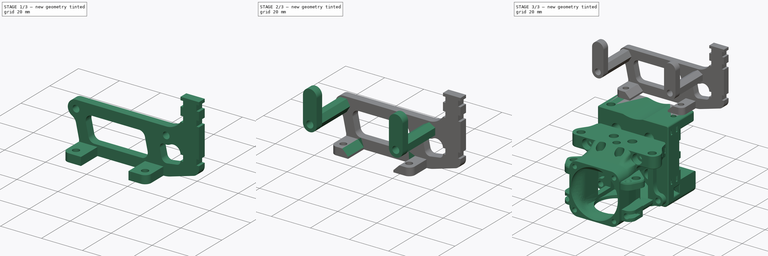
[diagram: build sequence overview — one tinted view per stage of 3, left to right]
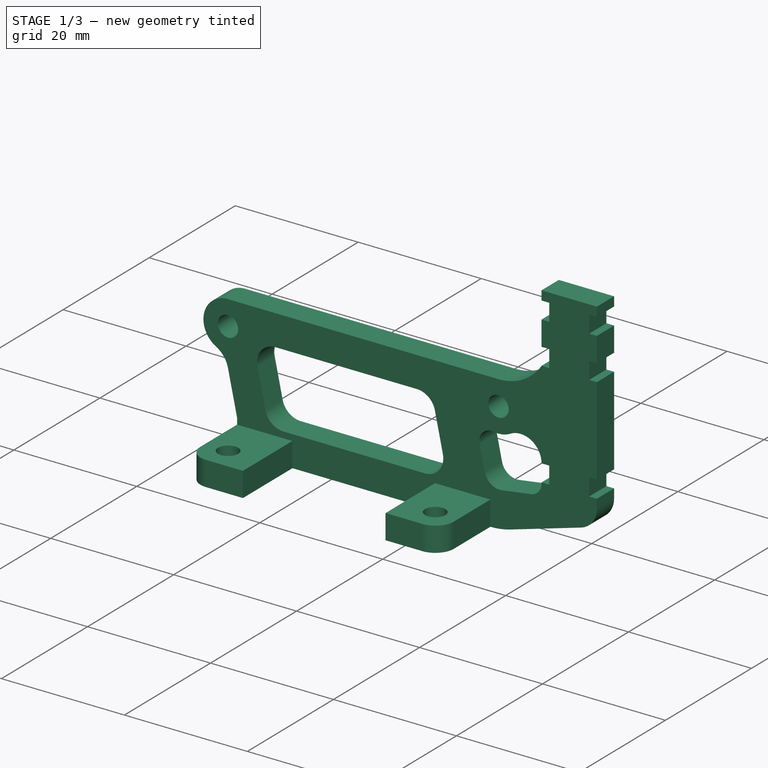
[diagram: stage 1 of 3 — iso view after this stage's code; geometry added in this stage tinted green]
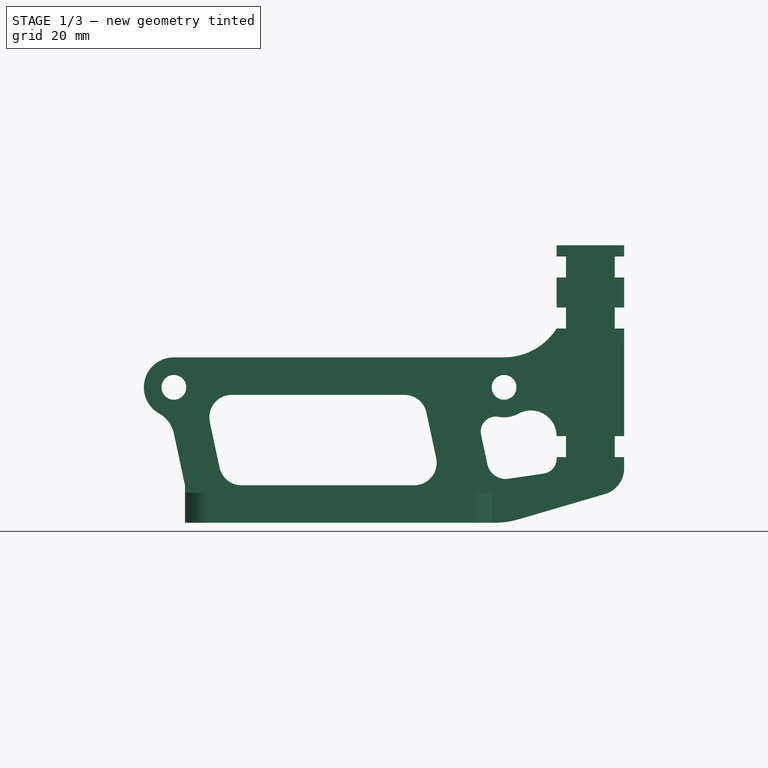
[diagram: stage 1 of 3 — front view after this stage's code; geometry added in this stage tinted green]
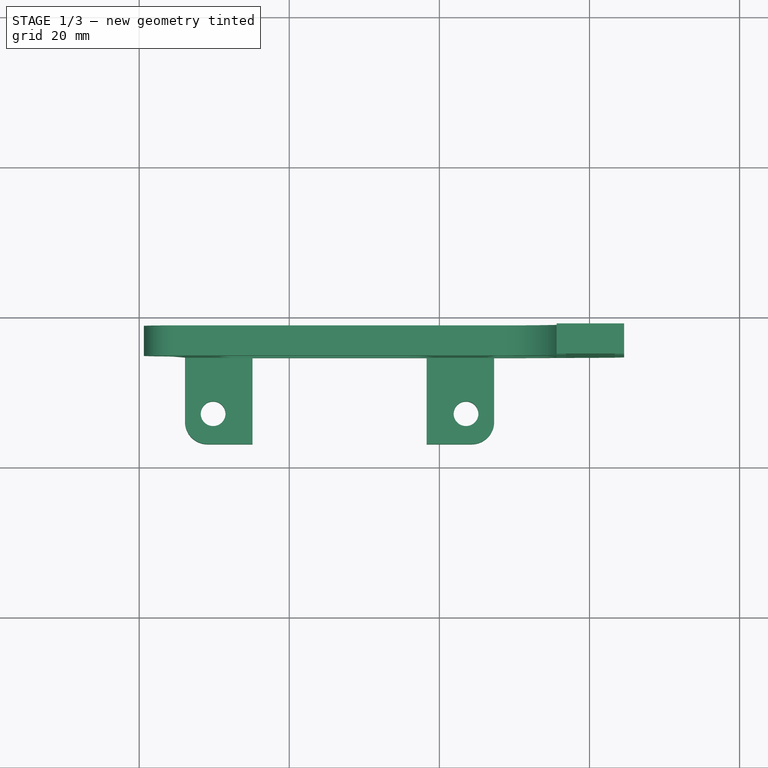
[diagram: stage 1 of 3 — top view after this stage's code; geometry added in this stage tinted green]
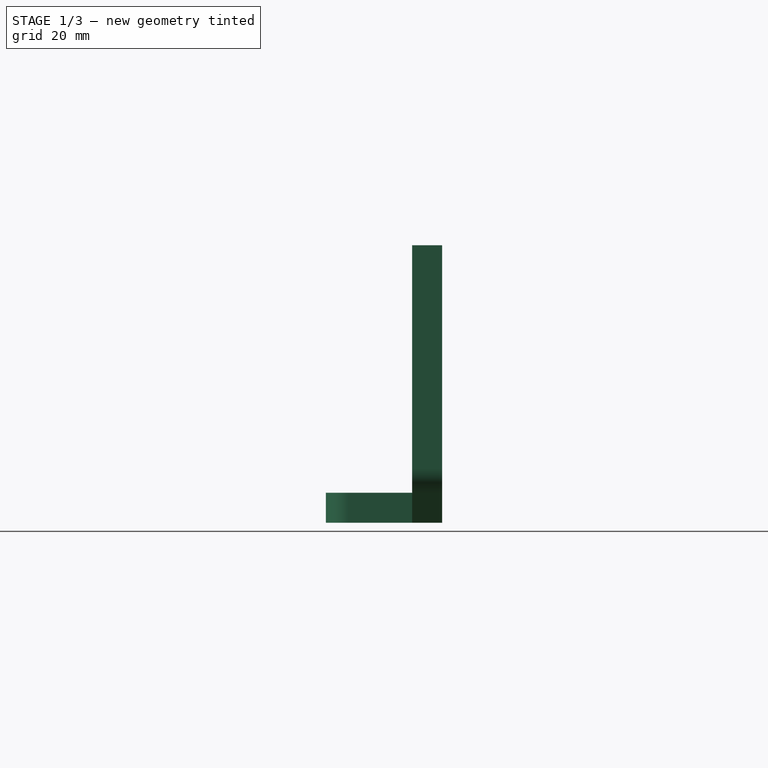
[diagram: stage 1 of 3 — right view after this stage's code; geometry added in this stage tinted green]
FCSTD DOCUMENT  (FreeCAD 2023.811R14555 (Git shallow))
Label: StrainRelief_v3
License: All rights reserved
objects: Part::Feature×18, App::Part×5, Part::SubShapeBinder×4, Sketcher::SketchObject×4, PartDesign::Pad×4, Part::FeaturePython×2, PartDesign::Body×2, App::DocumentObjectGroup×1, Part::Refine×1, PartDesign::Chamfer×1
note: 50 computed .brp shape members not serialized (recipe doc carries the construction recipe); baked Part::Feature solids carry a one-line shape summary decoded from their .brp

FEATURE [PartDesign::Body] Body  label="StuffInBetween"
  AutoGroupSolids = false
  ClaimAllChildren = false
  ExportMode = 0
  Group = -> [Sketch,Import,Import001,Pad,Sketch001,Pad001]
  InvalidShape = false
  Origin = -> Origin016
  Tip = -> Pad001
  TreeRank = 511
  ValidateShape = false
  _ExportChildren = -> [Import,Import001,Pad,Pad001]
  _GroupVersion = 1
FEATURE [Part::SubShapeBinder] Import002  label="Import002(Standoffs)"
  BindCopyOnChange = 0
  BindMode = 0
  ClaimChildren = false
  Context = -> Body001 [Import002.]
  EdgeTolerance = 1e-06
  FillStyle = 0
  Fuse = false
  InvalidShape = false
  MakeFace = false
  MergeEdges = true
  OffsetFill = false
  OffsetIntersection = false
  OffsetJoinType = 0
  OffsetOpenResult = false
  Outline = false
  PartialLoad = false
  Relative = true
  SplitEdges = false
  Support = -> [Body[Pad001.]]
  TightBound = false
  TreeRank = 529
  ValidateShape = false
  _Version = 8
FEATURE [Part::SubShapeBinder] Import003  label="Import003(Carriage.002)"
  BindCopyOnChange = 0
  BindMode = 0
  ClaimChildren = false
  Context = -> Body001 [Import003.]
  EdgeTolerance = 1e-06
  FillStyle = 0
  Fuse = false
  InvalidShape = false
  MakeFace = false
  MergeEdges = true
  OffsetFill = false
  OffsetIntersection = false
  OffsetJoinType = 0
  OffsetOpenResult = false
  Outline = false
  PartialLoad = false
  Relative = true
  SplitEdges = false
  Support = -> [Refined]
  TightBound = false
  TreeRank = 530
  ValidateShape = false
  _Version = 8
FEATURE [Sketcher::SketchObject] Sketch002  label="StrainRelief_Profile_sk"
  ArcFitTolerance = 1e-06
  ExternalBSplineMaxDegree = 5
  ExternalBSplineTolerance = 0.0001
  ExternalGeometry = -> [Import002,Import003]
  FullyConstrained = true
  InternalTolerance = 1e-06
  InvalidShape = false
  MakeInternals = false
  MapMode = 5
  Placement = pos=(0,174.6,0) rot=(0,0.707107,0.707107;3.14159rad)
  TreeRank = 531
  ValidateShape = false
  sketch-geometry (63):
    g0: Circle [constr] CenterX=-148.62 CenterY=149.5 CenterZ=0 NormalX=0 NormalY=0 NormalZ=1 AngleXU=0 Radius=4
    g1: Circle [constr] CenterX=-104.62 CenterY=149.5 CenterZ=0 NormalX=0 NormalY=0 NormalZ=1 AngleXU=0 Radius=4
    g2: LineSegment [constr] StartX=-164.62 StartY=168.44 StartZ=0 EndX=-155.62 EndY=168.44 EndZ=0
    g3: LineSegment [constr] StartX=-155.62 StartY=168.44 StartZ=0 EndX=-155.62 EndY=138.7 EndZ=0
    g4: LineSegment [constr] StartX=-155.62 StartY=138.7 StartZ=0 EndX=-164.62 EndY=138.7 EndZ=0
    g5: LineSegment [constr] StartX=-164.62 StartY=138.7 StartZ=0 EndX=-164.62 EndY=168.44 EndZ=0
    g6: LineSegment [constr] StartX=-163.37 StartY=168.44 StartZ=0 EndX=-155.62 EndY=168.44 EndZ=0
    g7: LineSegment [constr] StartX=-155.62 StartY=138.7 StartZ=0 EndX=-163.37 EndY=138.7 EndZ=0
    g8: LineSegment [constr] StartX=-163.37 StartY=138.7 StartZ=0 EndX=-163.37 EndY=168.44 EndZ=0
    g9: LineSegment StartX=-164.62 StartY=164.14 StartZ=0 EndX=-164.62 EndY=160.14 EndZ=0
    g10: LineSegment StartX=-164.62 StartY=160.14 StartZ=0 EndX=-163.37 EndY=160.14 EndZ=0
    g11: LineSegment StartX=-163.37 StartY=160.14 StartZ=0 EndX=-163.37 EndY=157.34 EndZ=0
    g12: LineSegment StartX=-163.37 StartY=157.34 StartZ=0 EndX=-164.62 EndY=157.34 EndZ=0
    g13: LineSegment StartX=-164.62 StartY=157.34 StartZ=0 EndX=-164.62 EndY=143 EndZ=0
    g14: LineSegment StartX=-164.62 StartY=143 StartZ=0 EndX=-163.37 EndY=143 EndZ=0
    g15: LineSegment StartX=-163.37 StartY=143 StartZ=0 EndX=-163.37 EndY=140.2 EndZ=0
    g16: LineSegment StartX=-163.37 StartY=140.2 StartZ=0 EndX=-164.62 EndY=140.2 EndZ=0
    g17: LineSegment StartX=-164.62 StartY=164.14 StartZ=0 EndX=-163.37 EndY=164.14 EndZ=0
    g18: LineSegment StartX=-163.37 StartY=164.14 StartZ=0 EndX=-163.37 EndY=166.94 EndZ=0
    g19: LineSegment StartX=-163.37 StartY=166.94 StartZ=0 EndX=-164.62 EndY=166.94 EndZ=0
    g20: LineSegment StartX=-164.62 StartY=166.94 StartZ=0 EndX=-164.62 EndY=168.44 EndZ=0
    g21: LineSegment StartX=-164.62 StartY=168.44 StartZ=0 EndX=-155.62 EndY=168.44 EndZ=0
    g22: LineSegment StartX=-155.62 StartY=168.44 StartZ=0 EndX=-155.62 EndY=166.94 EndZ=0
    g23: LineSegment StartX=-155.62 StartY=166.94 StartZ=0 EndX=-156.87 EndY=166.94 EndZ=0
    g24: LineSegment StartX=-156.87 StartY=166.94 StartZ=0 EndX=-156.87 EndY=164.14 EndZ=0
    g25: LineSegment StartX=-156.87 StartY=164.14 StartZ=0 EndX=-155.62 EndY=164.14 EndZ=0
    g26: LineSegment StartX=-155.62 StartY=164.14 StartZ=0 EndX=-155.62 EndY=160.14 EndZ=0
    g27: LineSegment StartX=-155.62 StartY=160.14 StartZ=0 EndX=-156.87 EndY=160.14 EndZ=0
    g28: LineSegment StartX=-156.87 StartY=160.14 StartZ=0 EndX=-156.87 EndY=157.34 EndZ=0
    g29: LineSegment StartX=-156.87 StartY=157.34 StartZ=0 EndX=-155.62 EndY=157.34 EndZ=0
    g30: LineSegment StartX=-155.62 StartY=143 StartZ=0 EndX=-156.87 EndY=143 EndZ=0
    g31: LineSegment StartX=-156.87 StartY=143 StartZ=0 EndX=-156.87 EndY=140.2 EndZ=0
    g32: LineSegment StartX=-156.87 StartY=140.2 StartZ=0 EndX=-155.62 EndY=140.2 EndZ=0
    g33: ArcOfCircle CenterX=-148.62 CenterY=161.8 CenterZ=0 NormalX=0 NormalY=0 NormalZ=1 AngleXU=0 Radius=8.3 StartAngle=3.70886 EndAngle=4.71239
    g34: LineSegment StartX=-164.62 StartY=140.2 StartZ=0 EndX=-164.62 EndY=138.7 EndZ=0
    g35: LineSegment StartX=-162.057 StartY=135.28 StartZ=0 EndX=-150.572 EndY=131.919 EndZ=0
    g36: ArcOfCircle CenterX=-161.057 CenterY=138.7 CenterZ=0 NormalX=0 NormalY=0 NormalZ=1 AngleXU=0 Radius=3.56339 StartAngle=3.14159 EndAngle=4.4277
    g37: ArcOfCircle CenterX=-152.2 CenterY=143 CenterZ=0 NormalX=0 NormalY=0 NormalZ=1 AngleXU=0 Radius=3.42045 StartAngle=1.06742 EndAngle=3.14159
    g38: LineSegment StartX=-148.62 StartY=153.5 StartZ=0 EndX=-104.62 EndY=153.5 EndZ=0
    g39: ArcOfCircle CenterX=-147.299 CenterY=143.101 CenterZ=0 NormalX=0 NormalY=0 NormalZ=1 AngleXU=0 Radius=11.6514 StartAngle=4.4277 EndAngle=4.71239
    g40: LineSegment StartX=-147.299 StartY=131.45 StartZ=0 EndX=-106.099 EndY=131.45 EndZ=0
    g41: GeomPoint [constr] X=-126.62 Y=149.5 Z=0
    g42: ArcOfCircle CenterX=-104.62 CenterY=149.5 CenterZ=0 NormalX=0 NormalY=0 NormalZ=1 AngleXU=0 Radius=4 StartAngle=5.22324 EndAngle=7.85398
    g43: ArcOfCircle CenterX=-100.709 CenterY=142.521 CenterZ=0 NormalX=0 NormalY=0 NormalZ=1 AngleXU=0 Radius=4 StartAngle=2.08164 EndAngle=2.93064
    g44: LineSegment StartX=-106.099 StartY=131.45 StartZ=0 EndX=-106.099 EndY=136.45 EndZ=0
    g45: LineSegment StartX=-106.099 StartY=136.45 StartZ=0 EndX=-104.62 EndY=143.359 EndZ=0
    g46: LineSegment StartX=-135.343 StartY=148.5 StartZ=0 EndX=-112.343 EndY=148.5 EndZ=0
    g47: LineSegment StartX=-113.638 StartY=136.45 StartZ=0 EndX=-136.638 EndY=136.45 EndZ=0
    g48: LineSegment StartX=-139.572 StartY=140.078 StartZ=0 EndX=-138.276 EndY=146.128 EndZ=0
    g49: LineSegment StartX=-110.705 StartY=138.822 StartZ=0 EndX=-109.409 EndY=144.872 EndZ=0
    g50: LineSegment StartX=-155.62 StartY=140.2 StartZ=0 EndX=-155.62 EndY=139.989 EndZ=0
    g51: LineSegment StartX=-153.91 StartY=138.011 StartZ=0 EndX=-149.191 EndY=137.318 EndZ=0
    g52: LineSegment StartX=-146.394 StartY=139.261 StartZ=0 EndX=-145.554 EndY=143.185 EndZ=0
    g53: ArcOfCircle CenterX=-135.343 CenterY=145.5 CenterZ=0 NormalX=0 NormalY=0 NormalZ=1 AngleXU=0 Radius=3 StartAngle=1.5708 EndAngle=2.93064
    g54: ArcOfCircle CenterX=-147.51 CenterY=143.604 CenterZ=0 NormalX=0 NormalY=0 NormalZ=1 AngleXU=0 Radius=2 StartAngle=6.07223 EndAngle=8.04011
    g55: ArcOfCircle CenterX=-148.83 CenterY=139.782 CenterZ=0 NormalX=0 NormalY=0 NormalZ=1 AngleXU=0 Radius=2.49043 StartAngle=4.5667 EndAngle=6.07223
    g56: ArcOfCircle CenterX=-136.638 CenterY=139.45 CenterZ=0 NormalX=0 NormalY=0 NormalZ=1 AngleXU=0 Radius=3 StartAngle=2.93064 EndAngle=4.71239
    g57: ArcOfCircle CenterX=-112.343 CenterY=145.5 CenterZ=0 NormalX=0 NormalY=0 NormalZ=1 AngleXU=0 Radius=3 StartAngle=6.07223 EndAngle=7.85398
    g58: ArcOfCircle CenterX=-113.638 CenterY=139.45 CenterZ=0 NormalX=0 NormalY=0 NormalZ=1 AngleXU=0 Radius=3 StartAngle=4.71239 EndAngle=6.07223
    g59: ArcOfCircle CenterX=-153.62 CenterY=139.989 CenterZ=0 NormalX=0 NormalY=0 NormalZ=1 AngleXU=0 Radius=2 StartAngle=3.14159 EndAngle=4.5667
    g60: ArcOfCircle CenterX=-148.62 CenterY=149.5 CenterZ=0 NormalX=0 NormalY=0 NormalZ=1 AngleXU=0 Radius=4 StartAngle=4.20901 EndAngle=4.89852
    g61: Circle CenterX=-148.62 CenterY=149.5 CenterZ=0 NormalX=0 NormalY=0 NormalZ=1 AngleXU=0 Radius=1.65
    g62: Circle CenterX=-104.62 CenterY=149.5 CenterZ=0 NormalX=0 NormalY=0 NormalZ=1 AngleXU=0 Radius=1.65
  constraints (163):
    c: Coincident(g0,g-3)
    c: Coincident(g1,g-4)
    c: Equal(g1,g0)
    c: Coincident(g2,g3)
    c: Coincident(g3,g4)
    c: Coincident(g5,g2)
    c: Horizontal(g2)
    c: Horizontal(g4)
    c: Vertical(g3)
    c: Vertical(g5)
    c: Coincident(g8,g6)
    c: Horizontal(g6)
    c: Horizontal(g7)
    c: Vertical(g8)
    c: PointOnObject(g9,g5)
    c: PointOnObject(g9,g5)
    c: Coincident(g9,g10)
    c: PointOnObject(g10,g8)
    c: Horizontal(g10)
    c: Coincident(g10,g11)
    c: PointOnObject(g11,g8)
    c: Coincident(g11,g12)
    c: PointOnObject(g12,g5)
    c: Horizontal(g12)
    c: Coincident(g12,g13)
    c: PointOnObject(g13,g5)
    c: Coincident(g13,g14)
    c: PointOnObject(g14,g8)
    c: Horizontal(g14)
    c: Coincident(g14,g15)
    c: PointOnObject(g15,g8)
    c: Coincident(g15,g16)
    c: PointOnObject(g16,g5)
    c: Horizontal(g16)
    c: Coincident(g9,g17)
    c: PointOnObject(g17,g8)
    c: Coincident(g17,g18)
    c: PointOnObject(g18,g8)
    c: Coincident(g18,g19)
    c: PointOnObject(g19,g5)
    c: Horizontal(g19)
    c: Coincident(g19,g20)
    c: Coincident(g20,g2)
    c: Coincident(g20,g21)
    c: Coincident(g21,g2)
    c: Horizontal(g17)
    c: Equal(g18,g11)
    c: Equal(g11,g15)
    c: DistanceY(g18,g18) = 2.8
    c: Coincident(g21,g22)
    c: PointOnObject(g22,g3)
    c: Coincident(g22,g23)
    c: Horizontal(g23)
    c: Coincident(g23,g24)
    c: Coincident(g24,g25)
    c: PointOnObject(g25,g3)
    c: Horizontal(g25)
    c: Coincident(g25,g26)
    c: PointOnObject(g26,g3)
    c: Coincident(g26,g27)
    c: Horizontal(g27)
    c: Coincident(g27,g28)
    c: Coincident(g28,g29)
    c: PointOnObject(g29,g3)
    c: Horizontal(g29)
    c: PointOnObject(g30,g3)
    c: Horizontal(g30)
    c: Coincident(g30,g31)
    c: Coincident(g31,g32)
    c: PointOnObject(g32,g3)
    c: Horizontal(g32)
    c: DistanceX(g4,g7) = 1.25
    c: DistanceX(g4,g4) = 9
    c: Horizontal(g27,g10)
    c: Horizontal(g23,g18)
    c: Horizontal(g30,g14)
    c: DistanceX(g3,g-3) = 7
    c: Equal(g24,g18)
    c: Equal(g18,g28)
    c: Equal(g28,g31)
    c: Coincident(g4,g5)
    c: Coincident(g8,g7)
    c: Coincident(g16,g34)
    c: Coincident(g34,g4)
    c: Tangent(g36,g35) = -1.5708
    c: Tangent(g36,g34) = -1.5708
    c: Tangent(g37,g0) = 1.5708
    c: Diameter(g0) = 8
    c: DistanceY(g22,g22) = 1.5
    c: DistanceY(g26,g26) = 4
    c: Equal(g16,g32)
    c: Coincident(g39,g-6)
    c: Tangent(g39,g40) = -1.5708
    c: Coincident(g40,g-5)
    c: Tangent(g39,g35) = -1.5708
    c: Symmetric(g-3,g-4,g41)
    c: Coincident(g42,g-4)
    c: Coincident(g42,g38)
    c: Tangent(g43,g42) = 1.5708
    c: Vertical(g43,g42)
    c: Radius(g43) = 4
    c: Tangent(g38,g1) = 1.5708
    c: PointOnObject(g33,g0)
    c: Coincident(g40,g44)
    c: Vertical(g44)
    c: Coincident(g44,g45)
    c: DistanceY(g44,g44) = 5
    c: Tangent(g45,g43) = 1.5708
    c: Tangent(g38,g33) = -1.5708
    c: Vertical(g33,g-3)
    c: Coincident(g29,g33)
    c: DistanceY(g-3,g33) = 12.3
    c: Vertical(g28)
    c: Equal(g29,g12)
    c: Equal(g17,g25)
    c: Vertical(g24)
    c: Coincident(g37,g30)
    c: DistanceY(g13,g-3) = 6.5
    c: Vertical(g31)
    c: Horizontal(g37,g30)
    c: DistanceY(g34,g34) = 1.5
    c: Horizontal(g46)
    c: Horizontal(g47)
    c: Coincident(g32,g50)
    c: Tangent(g46,g53) = 1.5708
    c: Tangent(g48,g53) = 1.5708
    c: Tangent(g52,g54) = -1.5708
    c: Tangent(g51,g55) = -1.5708
    c: Tangent(g52,g55) = -1.5708
    c: Tangent(g48,g56) = 1.5708
    c: Tangent(g47,g56) = 1.5708
    c: Tangent(g46,g57) = 1.5708
    c: Tangent(g49,g57) = -1.5708
    c: Tangent(g49,g58) = -1.5708
    c: Tangent(g47,g58) = 1.5708
    c: DistanceY(g-5,g47) = 5
    c: Parallel(g45,g49)
    c: Tangent(g50,g59) = -1.5708
    c: Tangent(g51,g59) = -1.5708
    c: Vertical(g50)
    c: Coincident(g60,g-3)
    c: Coincident(g60,g37)
    c: Tangent(g60,g54) = 1.5708
    c: DistanceY(g46,g33) = 5
    c: Equal(g53,g56)
    c: Equal(g56,g57)
    c: Equal(g57,g58)
    c: Radius(g53) = 3
    c: Parallel(g48,g52)
    c: Distance(g49,g45) = 5
    c: Distance(g48,g52) = 6.5
    c: DistanceX(g46,g46) = 23
    c: DistanceX(g47,g47) = 23
    c: Block(g36)
    c: Block(g55)
    c: Equal(g59,g54)
    c: Radius(g59) = 2
    c: Coincident(g7,g3)
    c: Coincident(g6,g21)
    c: Coincident(g61,g60)
    c: Coincident(g62,g42)
    c: Equal(g62,g61)
    c: Diameter(g62) = 3.3
FEATURE [PartDesign::Pad] Pad002  label="MainThingy"
  AddSubType = 0
  AlongSketchNormal = false
  AutoTaperInnerAngle = true
  CheckUpToFaceLimits = true
  ClaimChildren = false
  Direction = (1e-16,1,-2e-16)
  Fit = 0
  FitJoin = 0
  InnerFit = 0
  InnerFitJoin = 0
  InvalidShape = false
  Length = 4
  Length2 = 10
  Linearize = true
  NewSolid = false
  Profile = -> Sketch002
  ReferenceAxis = -> Sketch002 [N_Axis]
  Suppress = false
  TaperInnerAngle = 0
  TaperInnerAngleRev = 0
  TreeRank = 532
  Type = 0
  ValidateShape = true
  _ProfileBasedVersion = 1
FEATURE [Sketcher::SketchObject] Sketch003
  ArcFitTolerance = 1e-06
  AttachmentSupport = -> [Import003]
  ExternalBSplineMaxDegree = 5
  ExternalBSplineTolerance = 0.0001
  ExternalGeometry = -> [Import003,Pad002]
  FullyConstrained = true
  InternalTolerance = 1e-06
  InvalidShape = false
  MakeInternals = false
  MapMode = 5
  Placement = pos=(0,-1.065e-13,131.45) rot=(0,0,1;0rad)
  Support = -> [Import003]
  TreeRank = 533
  ValidateShape = false
  sketch-geometry (12):
    g0: LineSegment StartX=115.099 StartY=163.1 StartZ=0 EndX=109.099 EndY=163.1 EndZ=0
    g1: LineSegment StartX=106.099 StartY=166.1 StartZ=0 EndX=106.099 EndY=174.6 EndZ=0
    g2: LineSegment StartX=138.299 StartY=163.1 StartZ=0 EndX=144.299 EndY=163.1 EndZ=0
    g3: LineSegment StartX=147.299 StartY=166.1 StartZ=0 EndX=147.299 EndY=174.6 EndZ=0
    g4: Circle CenterX=143.549 CenterY=167.15 CenterZ=0 NormalX=0 NormalY=0 NormalZ=1 AngleXU=0 Radius=1.65
    g5: Circle CenterX=109.849 CenterY=167.15 CenterZ=0 NormalX=0 NormalY=0 NormalZ=1 AngleXU=0 Radius=1.65
    g6: ArcOfCircle CenterX=144.299 CenterY=166.1 CenterZ=0 NormalX=0 NormalY=0 NormalZ=1 AngleXU=0 Radius=3 StartAngle=4.71239 EndAngle=6.28319
    g7: ArcOfCircle CenterX=109.099 CenterY=166.1 CenterZ=0 NormalX=0 NormalY=0 NormalZ=1 AngleXU=0 Radius=3 StartAngle=3.14159 EndAngle=4.71239
    g8: LineSegment StartX=115.099 StartY=163.1 StartZ=0 EndX=115.099 EndY=174.6 EndZ=0
    g9: LineSegment StartX=138.299 StartY=174.6 StartZ=0 EndX=138.299 EndY=163.1 EndZ=0
    g10: LineSegment StartX=106.099 StartY=174.6 StartZ=0 EndX=115.099 EndY=174.6 EndZ=0
    g11: LineSegment StartX=147.299 StartY=174.6 StartZ=0 EndX=138.299 EndY=174.6 EndZ=0
  constraints (30):
    c: Horizontal(g0)
    c: Vertical(g1)
    c: Horizontal(g2)
    c: Vertical(g3)
    c: Coincident(g4,g-5)
    c: Coincident(g5,g-6)
    c: Equal(g5,g4)
    c: Diameter(g4) = 3.3
    c: Tangent(g3,g6) = -1.5708
    c: Tangent(g2,g6) = -1.5708
    c: Tangent(g1,g7) = 1.5708
    c: Tangent(g0,g7) = 1.5708
    c: DistanceY(g1,g1) = 8.5
    c: Radius(g6) = 3
    c: Equal(g3,g1)
    c: Equal(g6,g7)
    c: Coincident(g0,g8)
    c: Vertical(g8)
    c: Coincident(g9,g2)
    c: Vertical(g9)
    c: DistanceX(g9,g3) = 9
    c: DistanceX(g1,g8) = 9
    c: Coincident(g1,g-7)
    c: Coincident(g3,g-7)
    c: Coincident(g1,g10)
    c: PointOnObject(g10,g-7)
    c: Coincident(g8,g10)
    c: Coincident(g3,g11)
    c: PointOnObject(g11,g-7)
    c: Coincident(g9,g11)
FEATURE [PartDesign::Pad] Pad003  label="Feetsies"
  AddSubType = 0
  AlongSketchNormal = false
  AutoTaperInnerAngle = true
  BaseFeature = -> Pad002
  CheckUpToFaceLimits = true
  ClaimChildren = false
  Direction = (0,-8e-16,1)
  Fit = 0
  FitJoin = 0
  InnerFit = 0
  InnerFitJoin = 0
  InvalidShape = false
  Length = 4
  Length2 = 10
  Linearize = true
  NewSolid = false
  Profile = -> Sketch003
  ReferenceAxis = -> Sketch003 [N_Axis]
  Suppress = false
  TaperInnerAngle = 0
  TaperInnerAngleRev = 0
  TreeRank = 534
  Type = 0
  ValidateShape = true
  _ProfileBasedVersion = 1
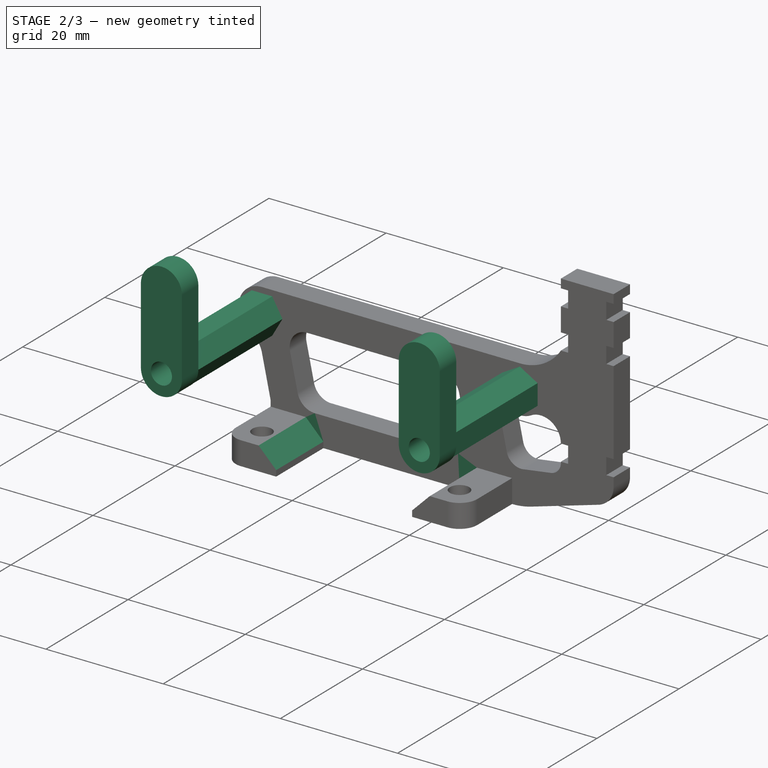
[diagram: stage 2 of 3 — iso view after this stage's code; geometry added in this stage tinted green]
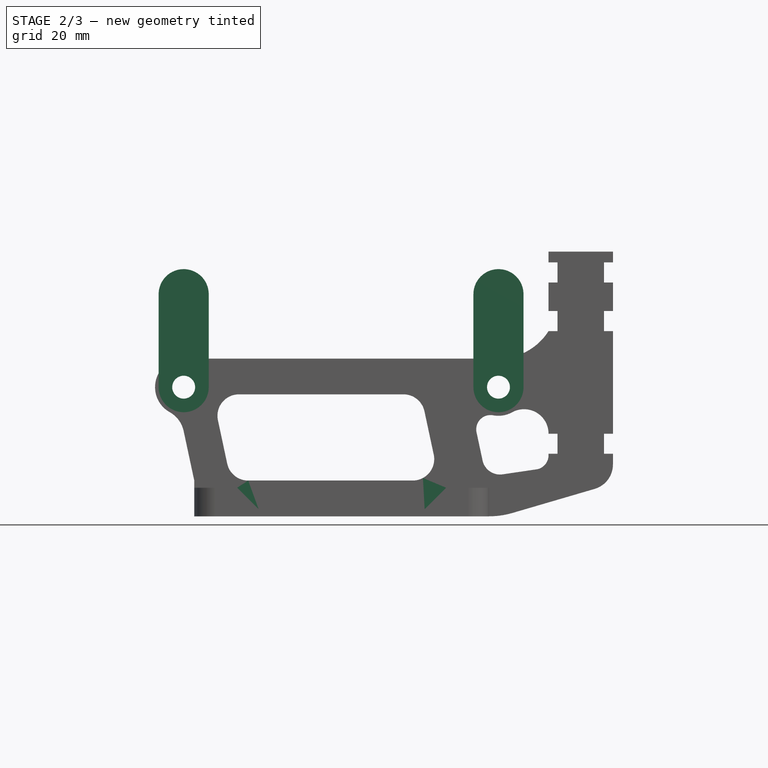
[diagram: stage 2 of 3 — front view after this stage's code; geometry added in this stage tinted green]
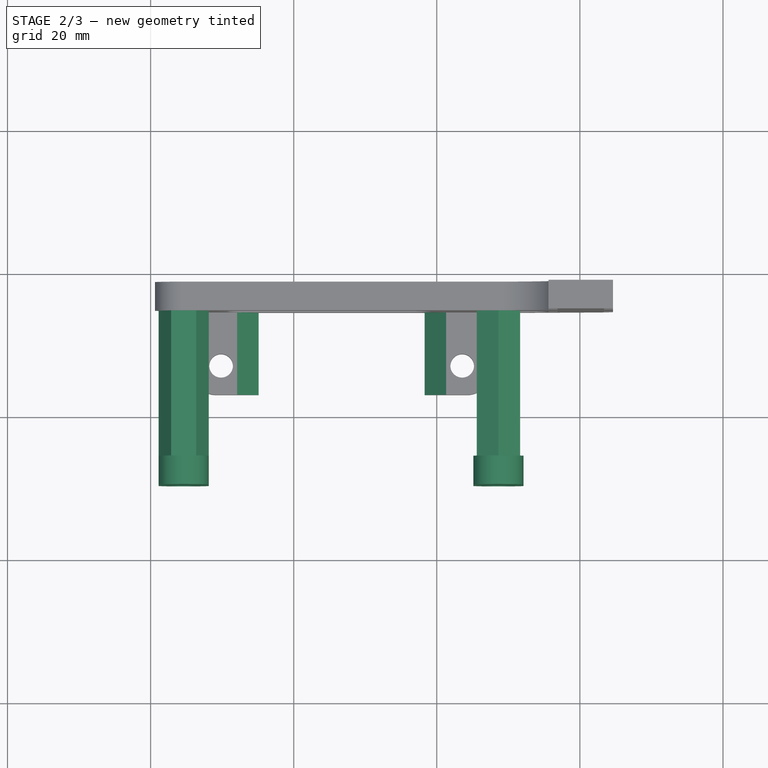
[diagram: stage 2 of 3 — top view after this stage's code; geometry added in this stage tinted green]
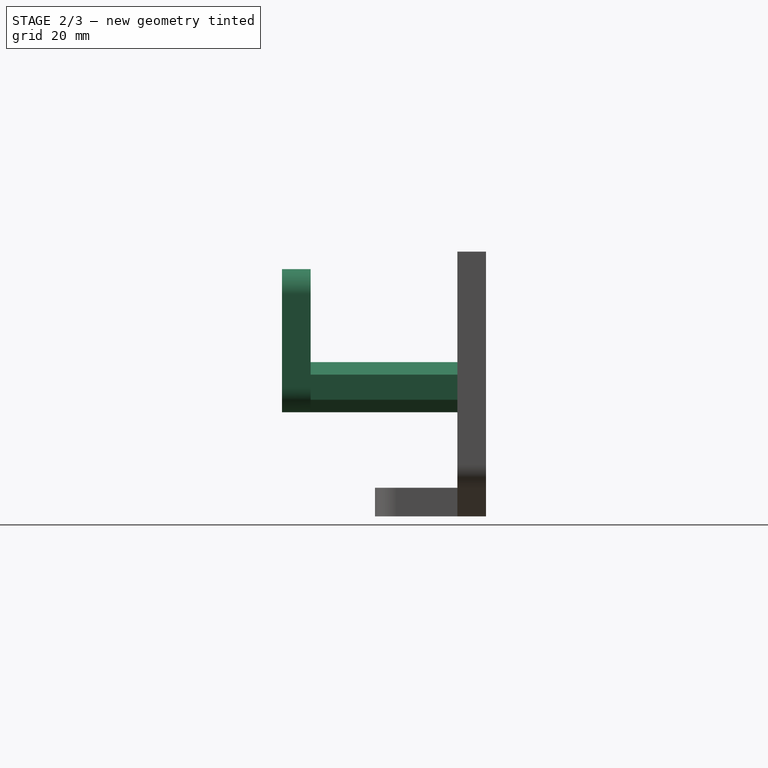
[diagram: stage 2 of 3 — right view after this stage's code; geometry added in this stage tinted green]
FEATURE [Part::Feature] Solid  label="housing_core^housing_sherpa_mini_a3_r9c (1)"
  InvalidShape = false
  Placement = pos=(-7.1e-15,-1.07e-14,1.8e-15) rot=(0,0,1;0rad)
  TreeRank = 487
  ValidateShape = false
  shape: bbox 273.4 x 272.6 x 347.7 mm, 657 faces (baked)
FEATURE [Part::Feature] Solid049  label="housing_rear_nema14^housing_sherpa_mini_a3_r9c (1)"
  InvalidShape = false
  Placement = pos=(0,2.842e-13,-7) rot=(0,0,1;0rad)
  TreeRank = 488
  ValidateShape = false
  shape: bbox 51.24 x 47.65 x 11.32 mm, 470 faces (baked)
FEATURE [Part::Feature] Solid050  label="housing_front^housing_sherpa_mini_a3_r9c (1)"
  InvalidShape = false
  Placement = pos=(-1.421e-13,-7.11e-14,14) rot=(0,0,1;0rad)
  TreeRank = 489
  ValidateShape = false
  shape: bbox 24.8 x 26.5 x 3.9 mm, 75 faces (baked)
FEATURE [Part::Feature] Solid051  label="idler_arm_long^housing_sherpa_mini_a3_r9c (1)"
  InvalidShape = false
  Placement = pos=(0,1.421e-13,4.25) rot=(0,0,1;0rad)
  TreeRank = 490
  ValidateShape = false
  shape: bbox 10.09 x 35.81 x 18.55 mm, 232 faces (baked)
FEATURE [App::Part] Part  label="sherpa_mini_mellow_gear"
  ClaimAllChildren = false
  ExportMode = 1
  Group = -> [Solid,Solid049,Solid050,Solid051]
  Origin = -> Origin
  Placement = pos=(122.4,141,135.4) rot=(1,0,0;1.5708rad)
  TreeRank = 492
  _ExportChildren = -> [Solid,Solid049,Solid050,Solid051]
  _GroupVersion = 1
FEATURE [Part::Feature] Part_solid  label="sherpa_mini_mellow_gear (Solid)"
  InvalidShape = false
  TreeRank = 493
  ValidateShape = false
  shape: bbox 273.4 x 347.7 x 272.6 mm, 1434 faces (baked)
FEATURE [Part::Refine] Refined  label="Carriage.002"
  InvalidShape = false
  Source = -> Compound007_child1
  TreeRank = 495
  ValidateShape = false
FEATURE [Part::Feature] Refined001_solid  label="Motor"
  InvalidShape = false
  Placement = pos=(126.62,156.7,149.5) rot=(1,0,0;1.5708rad)
  TreeRank = 501
  ValidateShape = false
  shape: bbox 50.6 x 28.2 x 36.5 mm, 6227 faces (baked)
FEATURE [Part::SubShapeBinder] Import  label="Import(sherpa_mini_mellow_gear (Solid))"
  BindCopyOnChange = 0
  BindMode = 0
  ClaimChildren = false
  Context = -> Body [Import.]
  EdgeTolerance = 1e-06
  FillStyle = 0
  Fuse = false
  InvalidShape = false
  MakeFace = false
  MergeEdges = true
  OffsetFill = false
  OffsetIntersection = false
  OffsetJoinType = 0
  OffsetOpenResult = false
  Outline = false
  PartialLoad = false
  Relative = true
  SplitEdges = false
  Support = -> [Part_solid]
  TightBound = false
  TreeRank = 513
  ValidateShape = false
  _Version = 8
FEATURE [Part::SubShapeBinder] Import001  label="Import001(_36H17HM002 (Solid))"
  BindCopyOnChange = 0
  BindMode = 0
  ClaimChildren = false
  Context = -> Body [Import001.]
  EdgeTolerance = 1e-06
  FillStyle = 0
  Fuse = false
  InvalidShape = false
  MakeFace = false
  MergeEdges = true
  OffsetFill = false
  OffsetIntersection = false
  OffsetJoinType = 0
  OffsetOpenResult = false
  Outline = false
  PartialLoad = false
  Relative = true
  SplitEdges = false
  Support = -> [Refined001_solid]
  TightBound = false
  TreeRank = 514
  ValidateShape = false
  _Version = 8
FEATURE [Sketcher::SketchObject] Sketch
  ArcFitTolerance = 1e-06
  AttachmentSupport = -> [Refined001_solid]
  ExternalBSplineMaxDegree = 5
  ExternalBSplineTolerance = 0.0001
  ExternalGeometry = -> [Import001]
  FullyConstrained = true
  InternalTolerance = 1e-06
  InvalidShape = false
  MakeInternals = false
  MapMode = 5
  Placement = pos=(126.62,150.1,149.5) rot=(-1,0,0;1.5708rad)
  Support = -> [Refined001_solid]
  TreeRank = 512
  ValidateShape = false
  sketch-geometry (10):
    g0: Circle CenterX=-22 CenterY=2.04828e-07 CenterZ=0 NormalX=0 NormalY=0 NormalZ=1 AngleXU=0 Radius=1.8
    g1: Circle CenterX=22 CenterY=-2.76716e-07 CenterZ=0 NormalX=0 NormalY=0 NormalZ=1 AngleXU=0 Radius=1.8
    g2: ArcOfCircle CenterX=22 CenterY=-2.76716e-07 CenterZ=0 NormalX=0 NormalY=0 NormalZ=1 AngleXU=0 Radius=3.5 StartAngle=0 EndAngle=3.14159
    g3: ArcOfCircle CenterX=22 CenterY=-13 CenterZ=0 NormalX=0 NormalY=0 NormalZ=1 AngleXU=0 Radius=3.5 StartAngle=3.14159 EndAngle=6.28319
    g4: LineSegment StartX=18.5 StartY=-2.76716e-07 StartZ=0 EndX=18.5 EndY=-13 EndZ=0
    g5: LineSegment StartX=25.5 StartY=-13 StartZ=0 EndX=25.5 EndY=-2.76716e-07 EndZ=0
    g6: ArcOfCircle CenterX=-22 CenterY=2.04828e-07 CenterZ=0 NormalX=0 NormalY=0 NormalZ=1 AngleXU=0 Radius=3.5 StartAngle=0 EndAngle=3.14159
    g7: ArcOfCircle CenterX=-22 CenterY=-13 CenterZ=0 NormalX=0 NormalY=0 NormalZ=1 AngleXU=0 Radius=3.5 StartAngle=3.14159 EndAngle=6.28319
    g8: LineSegment StartX=-25.5 StartY=2.04828e-07 StartZ=0 EndX=-25.5 EndY=-13 EndZ=0
    g9: LineSegment StartX=-18.5 StartY=-13 StartZ=0 EndX=-18.5 EndY=2.04828e-07 EndZ=0
  constraints (24):
    c: PointOnObject(g-5,g0)
    c: PointOnObject(g-3,g0)
    c: PointOnObject(g-4,g0)
    c: PointOnObject(g-6,g1)
    c: PointOnObject(g-7,g1)
    c: PointOnObject(g-8,g1)
    c: Tangent(g2,g4) = -1.5708
    c: Tangent(g4,g3) = -1.5708
    c: Tangent(g3,g5) = -1.5708
    c: Tangent(g5,g2) = -1.5708
    c: Equal(g2,g3)
    c: Coincident(g2,g1)
    c: Vertical(g4)
    c: Tangent(g6,g8) = -1.5708
    c: Tangent(g8,g7) = -1.5708
    c: Tangent(g7,g9) = -1.5708
    c: Tangent(g9,g6) = -1.5708
    c: Equal(g6,g7)
    c: Coincident(g6,g0)
    c: Vertical(g8)
    c: DistanceY(g7,g0) = 13
    c: Diameter(g7) = 7
    c: Equal(g3,g7)
    c: Equal(g4,g9)
FEATURE [PartDesign::Pad] Pad  label="MantisDuctBrace"
  AddSubType = 0
  AlongSketchNormal = false
  AutoTaperInnerAngle = true
  CheckUpToFaceLimits = true
  ClaimChildren = false
  Direction = (0,1,2e-16)
  Fit = 0
  FitJoin = 0
  InnerFit = 0
  InnerFitJoin = 0
  InvalidShape = false
  Length = 4
  Length2 = 10
  Linearize = true
  NewSolid = false
  Profile = -> Sketch
  ReferenceAxis = -> Sketch [N_Axis]
  Suppress = false
  TaperInnerAngle = 0
  TaperInnerAngleRev = 0
  TreeRank = 515
  Type = 0
  ValidateShape = true
  _ProfileBasedVersion = 1
FEATURE [Sketcher::SketchObject] Sketch001
  ArcFitTolerance = 1e-06
  AttachmentSupport = -> [Pad]
  ExternalBSplineMaxDegree = 5
  ExternalBSplineTolerance = 0.0001
  ExternalGeometry = -> [Pad]
  FullyConstrained = true
  InternalTolerance = 1e-06
  InvalidShape = false
  MakeInternals = false
  MapMode = 5
  Placement = pos=(0,154.1,0) rot=(0,0.707107,0.707107;3.14159rad)
  Support = -> [Pad]
  TreeRank = 516
  ValidateShape = false
  sketch-geometry (16):
    g0: LineSegment StartX=-148.62 StartY=146 StartZ=0 EndX=-145.589 EndY=147.75 EndZ=0
    g1: LineSegment StartX=-145.589 StartY=147.75 StartZ=0 EndX=-145.589 EndY=151.25 EndZ=0
    g2: LineSegment StartX=-145.589 StartY=151.25 StartZ=0 EndX=-148.62 EndY=153 EndZ=0
    g3: LineSegment StartX=-148.62 StartY=153 StartZ=0 EndX=-151.651 EndY=151.25 EndZ=0
    g4: LineSegment StartX=-151.651 StartY=151.25 StartZ=0 EndX=-151.651 EndY=147.75 EndZ=0
    g5: LineSegment StartX=-151.651 StartY=147.75 StartZ=0 EndX=-148.62 EndY=146 EndZ=0
    g6: Circle [constr] CenterX=-148.62 CenterY=149.5 CenterZ=0 NormalX=0 NormalY=0 NormalZ=1 AngleXU=0 Radius=3.5
    g7: LineSegment StartX=-106.37 StartY=152.531 StartZ=0 EndX=-108.12 EndY=149.5 EndZ=0
    g8: LineSegment StartX=-108.12 StartY=149.5 StartZ=0 EndX=-106.37 EndY=146.469 EndZ=0
    g9: LineSegment StartX=-106.37 StartY=146.469 StartZ=0 EndX=-102.87 EndY=146.469 EndZ=0
    g10: LineSegment StartX=-102.87 StartY=146.469 StartZ=0 EndX=-101.12 EndY=149.5 EndZ=0
    g11: LineSegment StartX=-101.12 StartY=149.5 StartZ=0 EndX=-102.87 EndY=152.531 EndZ=0
    g12: LineSegment StartX=-102.87 StartY=152.531 StartZ=0 EndX=-106.37 EndY=152.531 EndZ=0
    g13: Circle [constr] CenterX=-104.62 CenterY=149.5 CenterZ=0 NormalX=0 NormalY=0 NormalZ=1 AngleXU=0 Radius=3.5
    g14: Circle CenterX=-148.62 CenterY=149.5 CenterZ=0 NormalX=0 NormalY=0 NormalZ=1 AngleXU=0 Radius=1.6
    g15: Circle CenterX=-104.62 CenterY=149.5 CenterZ=0 NormalX=0 NormalY=0 NormalZ=1 AngleXU=0 Radius=1.6
  constraints (36):
    c: Coincident(g0,g1)
    c: Coincident(g1,g2)
    c: Coincident(g2,g3)
    c: Coincident(g3,g4)
    c: Coincident(g4,g5)
    c: Coincident(g5,g0)
    c: Equal(g0, g1-g5) x5
    c: PointOnObject(g0,g6)
    c: PointOnObject(g1,g6)
    c: PointOnObject(g2,g6)
    c: PointOnObject(g3,g6)
    c: PointOnObject(g4,g6)
    c: PointOnObject(g5,g6)
    c: Coincident(g6,g-3)
    c: Coincident(g7,g8)
    c: Coincident(g8,g9)
    c: Coincident(g9,g10)
    c: Coincident(g10,g11)
    c: Coincident(g11,g12)
    c: Coincident(g12,g7)
    c: Equal(g7, g8-g12) x5
    c: PointOnObject(g7,g13)
    c: PointOnObject(g8,g13)
    c: PointOnObject(g9,g13)
    c: PointOnObject(g10,g13)
    c: PointOnObject(g11,g13)
    c: PointOnObject(g12,g13)
    c: Coincident(g13,g-4)
    c: Equal(g13,g6)
    c: Diameter(g13) = 7
    c: Vertical(g2,g-3)
    c: Horizontal(g7,g-4)
    c: Coincident(g14,g-3)
    c: Diameter(g14) = 3.2
    c: Coincident(g15,g-4)
    c: Equal(g14,g15)
FEATURE [PartDesign::Pad] Pad001  label="Standoffs"
  AddSubType = 0
  AlongSketchNormal = false
  AutoTaperInnerAngle = true
  BaseFeature = -> Pad
  CheckUpToFaceLimits = true
  ClaimChildren = false
  Direction = (0,1,-2e-16)
  Fit = 0
  FitJoin = 0
  InnerFit = 0
  InnerFitJoin = 0
  InvalidShape = false
  Length = 20.5
  Length2 = 10
  Linearize = true
  NewSolid = false
  Profile = -> Sketch001
  ReferenceAxis = -> Sketch001 [N_Axis]
  Suppress = false
  TaperInnerAngle = 0
  TaperInnerAngleRev = 0
  TreeRank = 517
  Type = 0
  ValidateShape = true
  _ProfileBasedVersion = 1
FEATURE [PartDesign::Chamfer] Chamfer
  AddSubType = 0
  Angle = 45
  Base = -> Pad003 [Edge125,Edge134]
  BaseFeature = -> Pad003
  ChamferType = 0
  FlipDirection = false
  InvalidShape = false
  NewSolid = false
  Size = 3
  Size2 = 1
  SupportTransform = false
  Suppress = false
  TreeRank = 535
  UseAllEdges = false
  ValidateShape = true
FEATURE [PartDesign::Body] Body001  label="StrainRelief"
  AutoGroupSolids = false
  ClaimAllChildren = false
  ExportMode = 0
  Group = -> [Sketch002,Import002,Import003,Pad002,Sketch003,Pad003,Chamfer]
  InvalidShape = false
  Origin = -> Origin017
  Tip = -> Chamfer
  TreeRank = 527
  ValidateShape = false
  _ExportChildren = -> [Import002,Import003,Pad002,Pad003,Chamfer]
  _GroupVersion = 1
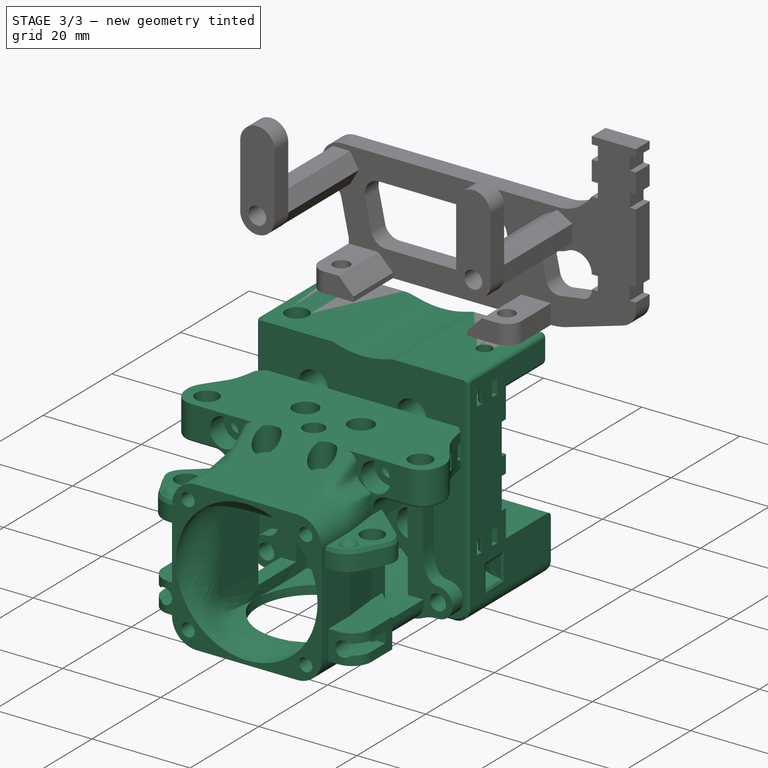
[diagram: stage 3 of 3 — iso view after this stage's code; geometry added in this stage tinted green]
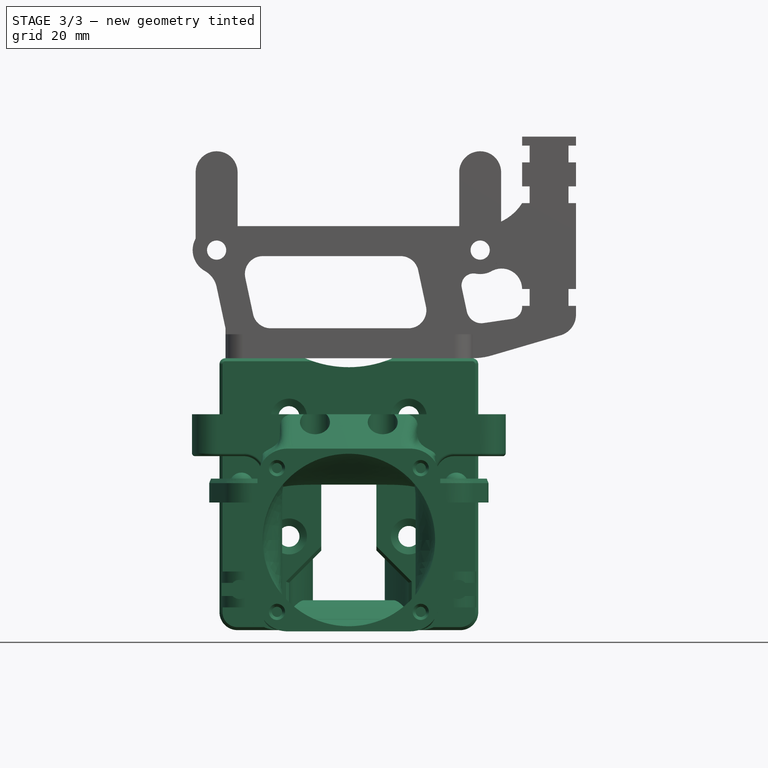
[diagram: stage 3 of 3 — front view after this stage's code; geometry added in this stage tinted green]
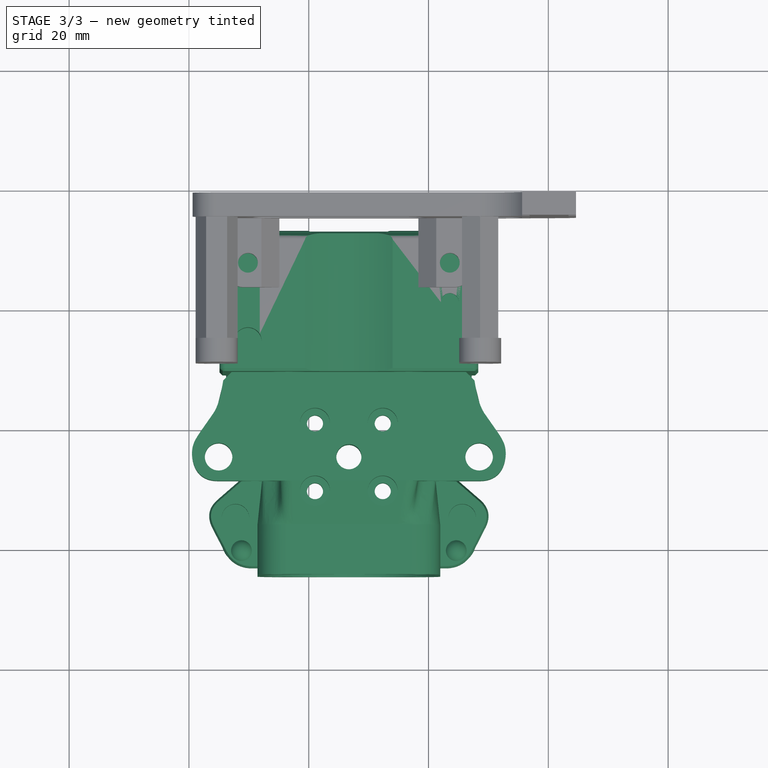
[diagram: stage 3 of 3 — top view after this stage's code; geometry added in this stage tinted green]
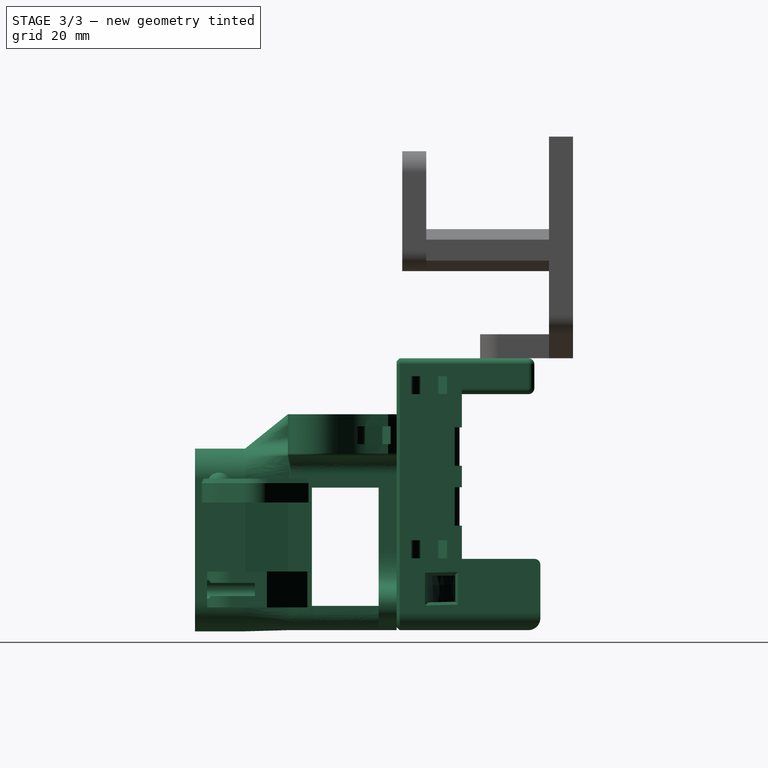
[diagram: stage 3 of 3 — right view after this stage's code; geometry added in this stage tinted green]
FEATURE [Part::Feature] Solid038  label="SupportPin (1)"
  InvalidShape = false
  Placement = pos=(1.8e-15,0,0) rot=(0,0,1;0rad)
  TreeRank = 233
  ValidateShape = false
  shape: bbox 2.5 x 11.5 x 2.5 mm, 4 faces (baked)
FEATURE [Part::Feature] Solid039  label="SupportPin (2)"
  InvalidShape = false
  Placement = pos=(1.8e-15,0,0) rot=(0,0,1;0rad)
  TreeRank = 234
  ValidateShape = false
  shape: bbox 2.5 x 11.5 x 2.5 mm, 4 faces (baked)
FEATURE [Part::Feature] Solid040  label="SupportPin (3)"
  InvalidShape = false
  Placement = pos=(1.8e-15,0,0) rot=(0,0,1;0rad)
  TreeRank = 235
  ValidateShape = false
  shape: bbox 2.5 x 11.5 x 2.5 mm, 4 faces (baked)
FEATURE [Part::Feature] Solid041  label="TubeHeatSink"
  InvalidShape = false
  Placement = pos=(1.8e-15,0,0) rot=(0,0,1;0rad)
  TreeRank = 236
  ValidateShape = false
  shape: bbox 10 x 12 x 10 mm, 30 faces (baked)
FEATURE [Part::Feature] Solid042  label="HeatBreak"
  InvalidShape = false
  Placement = pos=(1.8e-15,0,0) rot=(0,0,1;0rad)
  TreeRank = 237
  ValidateShape = false
  shape: bbox 9 x 13.5 x 9 mm, 9 faces (baked)
FEATURE [Part::Feature] Solid043  label="SupportPin"
  InvalidShape = false
  Placement = pos=(1.8e-15,0,0) rot=(0,0,1;0rad)
  TreeRank = 238
  ValidateShape = false
  shape: bbox 2.5 x 11.5 x 2.5 mm, 4 faces (baked)
FEATURE [Part::Feature] Solid044  label="Tube"
  InvalidShape = false
  Placement = pos=(1.8e-15,0,0) rot=(0,0,1;0rad)
  TreeRank = 239
  ValidateShape = false
  shape: bbox 2.5 x 32 x 2.5 mm, 4 faces (baked)
FEATURE [Part::Feature] Solid045  label="SOLID"
  InvalidShape = false
  TreeRank = 240
  ValidateShape = false
  shape: bbox 22.21 x 26.01 x 22.21 mm, 259 faces (baked)
FEATURE [App::Part] Part011  label="Heatsink"
  ClaimAllChildren = false
  ExportMode = 1
  Group = -> [Solid038,Solid039,Solid040,Solid041,Solid042,Solid043,Solid044,Solid045]
  Origin = -> Origin011
  Placement = pos=(1.8e-15,0,0) rot=(0,0,1;0rad)
  TreeRank = 242
  _ExportChildren = -> [Solid038,Solid039,Solid040,Solid041,Solid042,Solid043,Solid044,Solid045]
  _GroupVersion = 1
FEATURE [Part::Feature] Solid046  label="Nozzle"
  InvalidShape = false
  Placement = pos=(5.33e-14,-8.50002,1.78e-14) rot=(-0.280984,0.678619,0.678619;2.59375rad)
  TreeRank = 243
  ValidateShape = false
  shape: bbox 7.801 x 21.56 x 7.801 mm, 61 faces (baked)
FEATURE [Part::Feature] Solid047  label="SOLID"
  InvalidShape = false
  TreeRank = 244
  ValidateShape = false
  shape: bbox 26.44 x 19.84 x 19.3 mm, 319 faces (baked)
FEATURE [App::Part] Part012  label="Block"
  ClaimAllChildren = false
  ExportMode = 1
  Group = -> [Solid046,Solid047]
  Origin = -> Origin012
  Placement = pos=(1.8e-15,0,0) rot=(0,0,1;0rad)
  TreeRank = 246
  _ExportChildren = -> [Solid046,Solid047]
  _GroupVersion = 1
FEATURE [Part::Feature] Solid048  label="Sock"
  InvalidShape = false
  Placement = pos=(1.8e-15,0,0) rot=(0,0,1;0rad)
  TreeRank = 247
  ValidateShape = false
  shape: bbox 29.07 x 22.02 x 22.56 mm, 81 faces (baked)
FEATURE [App::Part] Part013  label="Crazy Volcano"
  ClaimAllChildren = false
  ExportMode = 1
  Group = -> [Part011,Part012,Solid048]
  Origin = -> Origin013
  Placement = pos=(126.699,135,66.603) rot=(0.57735,-0.57735,-0.57735;2.0944rad)
  TreeRank = 249
  _ExportChildren = -> [Part011,Part012,Solid048]
  _GroupVersion = 1
FEATURE [Part::Feature] Compound007  label="Carriage"
  InvalidShape = false
  TreeRank = 277
  ValidateShape = false
  shape: bbox 76.67 x 100.4 x 107.6 mm, 587 faces, 6 solids (baked)
FEATURE [App::Part] Part015  label="Mantis Dual 5015 Crazy Volcano v1.0 v35"
  ClaimAllChildren = false
  ExportMode = 1
  Group = -> [Part013,Compound007]
  Origin = -> Origin015
  TreeRank = 280
  _ExportChildren = -> [Part013,Compound007]
  _GroupVersion = 1
FEATURE [Part::FeaturePython] Compound007_child0  label="Carriage.0"  # WARN: FeaturePython — macro-defined, semantics opaque (R4)
  Base = -> Compound007
  FilterType = 1
  InvalidShape = false
  Invert = false
  OverrideMaxVal = 0
  TreeRank = 468
  ValidateShape = false
  WindowFrom = 80
  WindowTo = 100
  items = 0
FEATURE [App::DocumentObjectGroup] GrExplode_Compound007  label="Exploded Carriage"
  ClaimAllChildren = true
  ExportMode = 1
  Group = -> [Compound007_child0]
  TreeRank = 474
  _GroupVersion = 1
FEATURE [Part::FeaturePython] Compound007_child1  label="Carriage.1"  # WARN: FeaturePython — macro-defined, semantics opaque (R4)
  Base = -> Compound007
  FilterType = 1
  InvalidShape = false
  Invert = false
  OverrideMaxVal = 0
  TreeRank = 494
  ValidateShape = false
  WindowFrom = 80
  WindowTo = 100
  items = 1
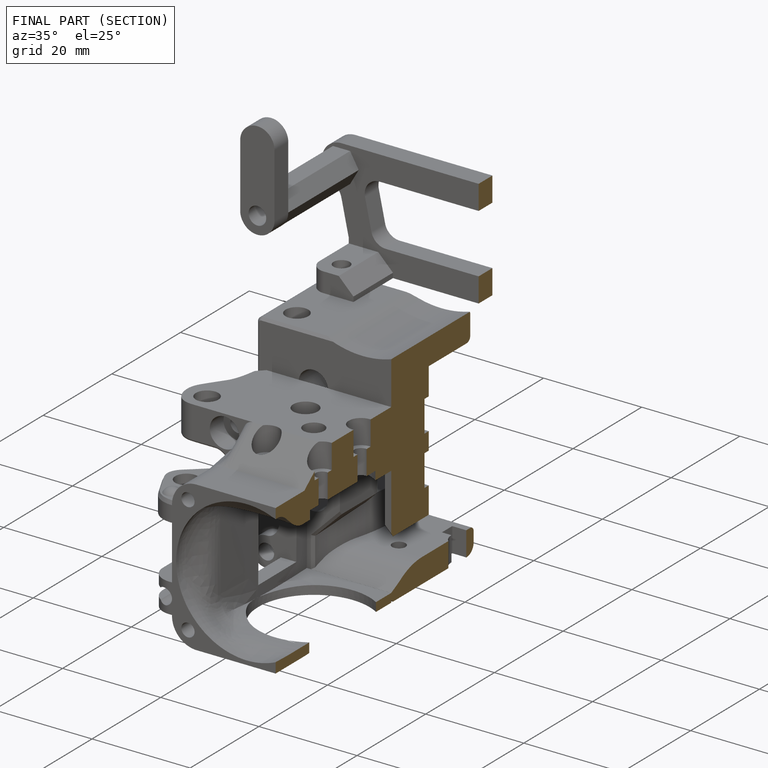
[diagram: finished part — half-section view (interior)]
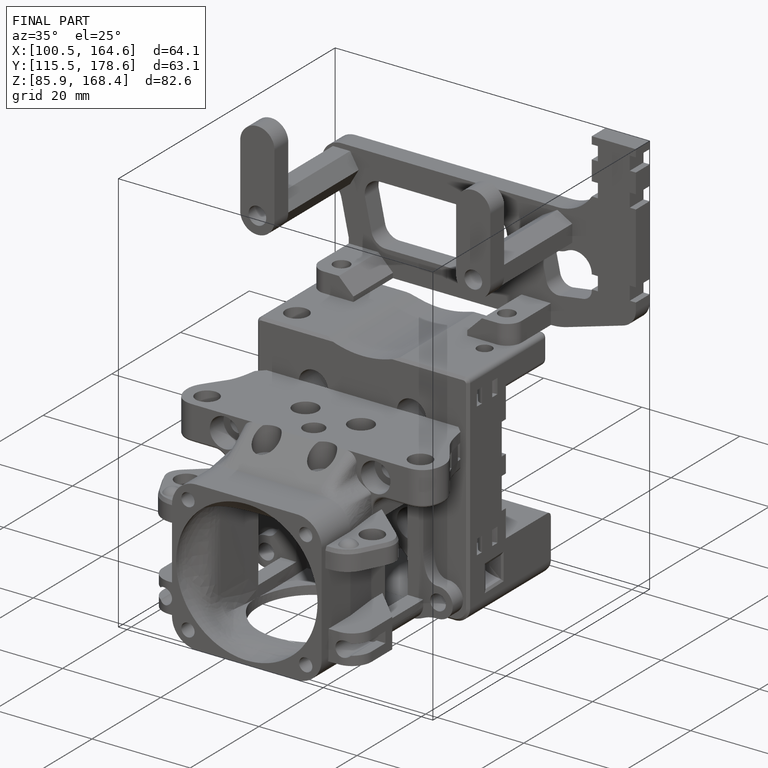
[diagram: finished part — iso view with bounding-box wireframe]
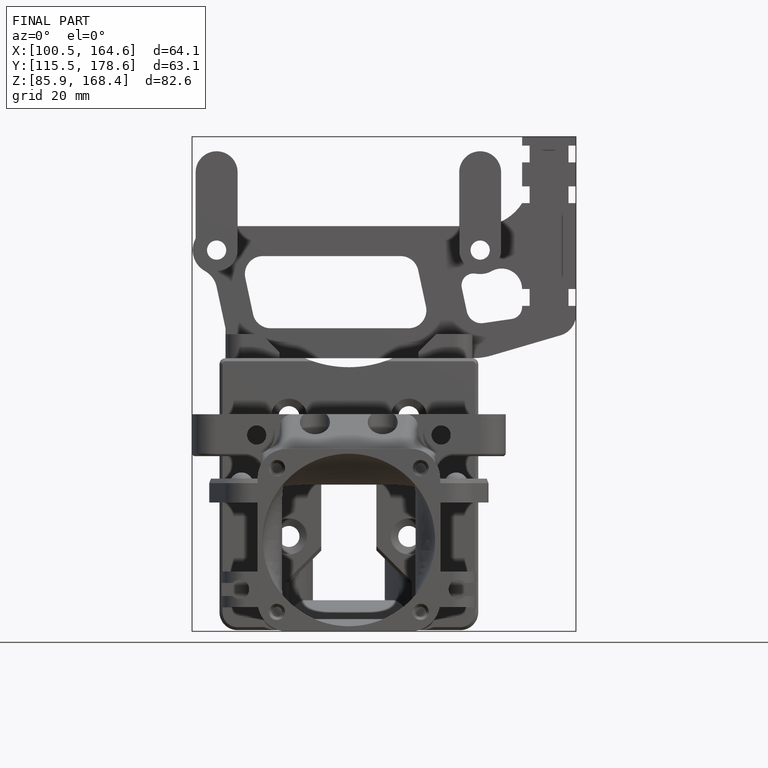
[diagram: finished part — front view with bounding-box wireframe]
